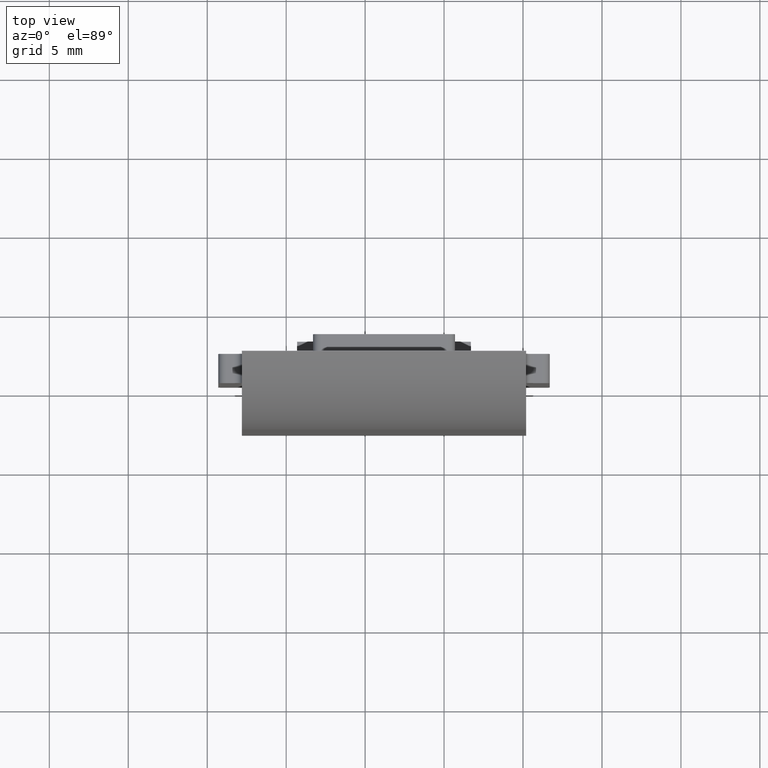
[diagram: clean part render]
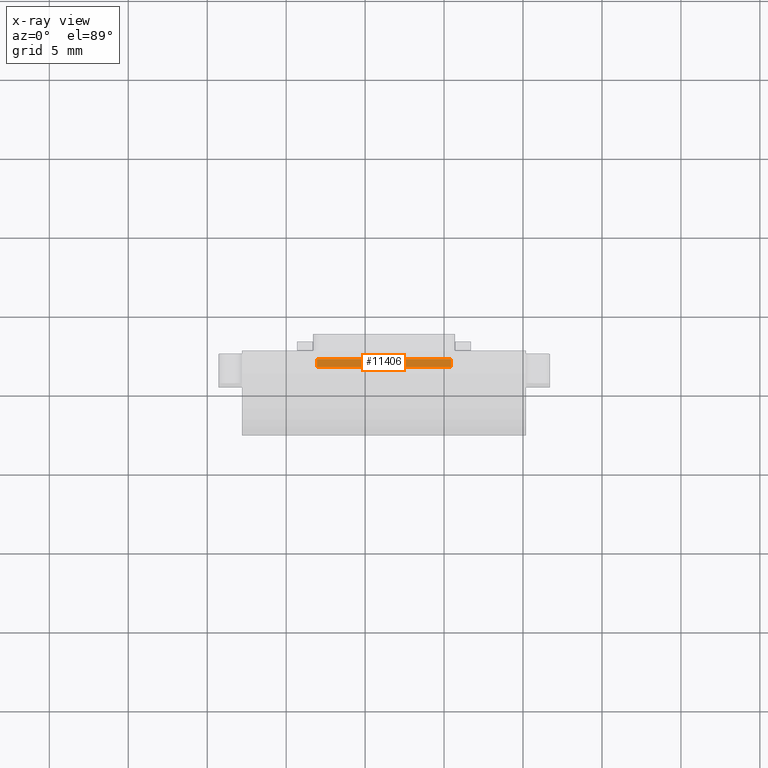
[diagram: x-ray — body ghosted, one internal face saturated and labeled with its STEP entity id]
A machine part, top view, then the same camera in x-ray: the body is ghosted and one INTERNAL B-rep face — a face not visible from any outside direction — is saturated and labeled: STEP entity #11406.
In plain terms, the highlighted planar face has unit normal (0, -0, -1).
Its self-contained STEP definition (entity closure, byte-faithful):
#620 = VERTEX_POINT ( 'NONE', #1868 ) ;
#748 = CARTESIAN_POINT ( 'NONE',  ( -4.250000000000000000, 4.250000000000001776, 5.799999999999978506 ) ) ;
#1166 = CARTESIAN_POINT ( 'NONE',  ( -4.250000000000000000, 4.750000000000001776, 5.799999999999978506 ) ) ;
#1231 = EDGE_CURVE ( 'NONE', #620, #9934, #10044, .T. ) ;
#1868 = CARTESIAN_POINT ( 'NONE',  ( 4.249999999999998224, 4.750000000000001776, 5.799999999999978506 ) ) ;
#2625 = VECTOR ( 'NONE', #11402, 1000.000000000000000 ) ;
#2803 = LINE ( 'NONE', #10333, #16521 ) ;
#3012 = DIRECTION ( 'NONE',  ( -1.000000000000000000, -0.000000000000000000, -0.000000000000000000 ) ) ;
#3307 = EDGE_LOOP ( 'NONE', ( #14885, #10957, #4866, #3944 ) ) ;
#3901 = CARTESIAN_POINT ( 'NONE',  ( -4.250000000000000000, 4.250000000000001776, 5.799999999999978506 ) ) ;
#3944 = ORIENTED_EDGE ( 'NONE', *, *, #10224, .T. ) ;
#4866 = ORIENTED_EDGE ( 'NONE', *, *, #10015, .F. ) ;
#4882 = DIRECTION ( 'NONE',  ( 0.000000000000000000, 1.000000000000000000, -4.511634527898065801E-17 ) ) ;
#4997 = VERTEX_POINT ( 'NONE', #7017 ) ;
#5499 = VECTOR ( 'NONE', #3012, 1000.000000000000000 ) ;
#5874 = DIRECTION ( 'NONE',  ( 0.000000000000000000, -4.511634527898065801E-17, -1.000000000000000000 ) ) ;
#6011 = DIRECTION ( 'NONE',  ( 0.000000000000000000, 1.000000000000000000, -4.511634527898065801E-17 ) ) ;
#6405 = CARTESIAN_POINT ( 'NONE',  ( -4.750000000000000888, 4.750000000000001776, 5.799999999999978506 ) ) ;
#7017 = CARTESIAN_POINT ( 'NONE',  ( 4.249999999999998224, 4.250000000000001776, 5.799999999999978506 ) ) ;
#8056 = LINE ( 'NONE', #13599, #5499 ) ;
#9601 = VECTOR ( 'NONE', #13058, 1000.000000000000000 ) ;
#9934 = VERTEX_POINT ( 'NONE', #1166 ) ;
#9936 = VERTEX_POINT ( 'NONE', #3901 ) ;
#10015 = EDGE_CURVE ( 'NONE', #4997, #9936, #8056, .T. ) ;
#10044 = LINE ( 'NONE', #6405, #9601 ) ;
#10096 = CARTESIAN_POINT ( 'NONE',  ( -4.750000000000000888, 4.250000000000001776, 5.799999999999978506 ) ) ;
#10224 = EDGE_CURVE ( 'NONE', #4997, #620, #2803, .T. ) ;
#10333 = CARTESIAN_POINT ( 'NONE',  ( 4.249999999999998224, 4.750000000000000888, 5.799999999999978506 ) ) ;
#10751 = AXIS2_PLACEMENT_3D ( 'NONE', #10096, #5874, #6011 ) ;
#10957 = ORIENTED_EDGE ( 'NONE', *, *, #16095, .T. ) ;
#11402 = DIRECTION ( 'NONE',  ( -0.000000000000000000, -1.000000000000000000, 4.511634527898065801E-17 ) ) ;
#11406 = ADVANCED_FACE ( 'NONE', ( #14344 ), #13991, .F. ) ;
#13058 = DIRECTION ( 'NONE',  ( -1.000000000000000000, -0.000000000000000000, -0.000000000000000000 ) ) ;
#13387 = LINE ( 'NONE', #748, #2625 ) ;
#13599 = CARTESIAN_POINT ( 'NONE',  ( -4.750000000000000888, 4.250000000000001776, 5.799999999999978506 ) ) ;
#13991 = PLANE ( 'NONE',  #10751 ) ;
#14344 = FACE_OUTER_BOUND ( 'NONE', #3307, .T. ) ;
#14885 = ORIENTED_EDGE ( 'NONE', *, *, #1231, .T. ) ;
#16095 = EDGE_CURVE ( 'NONE', #9934, #9936, #13387, .T. ) ;
#16521 = VECTOR ( 'NONE', #4882, 1000.000000000000000 ) ;